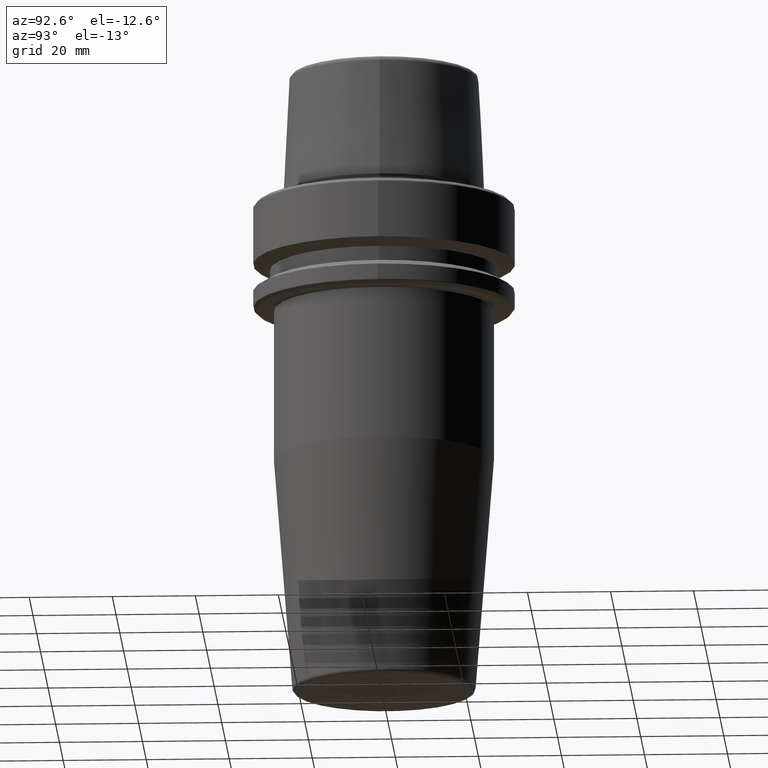
[diagram: clean part render]
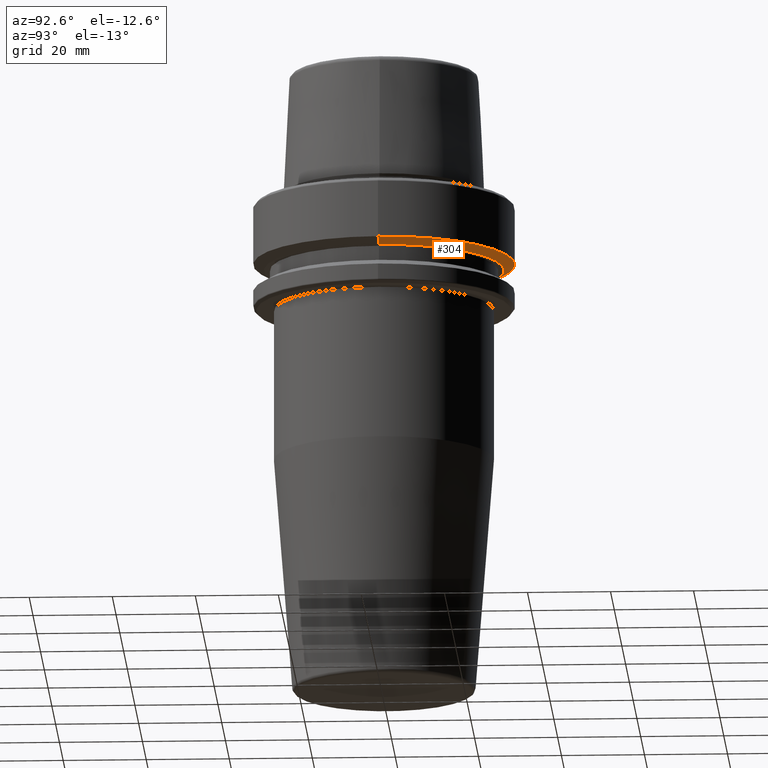
[diagram: same view with one face highlighted and labeled with its STEP entity id]
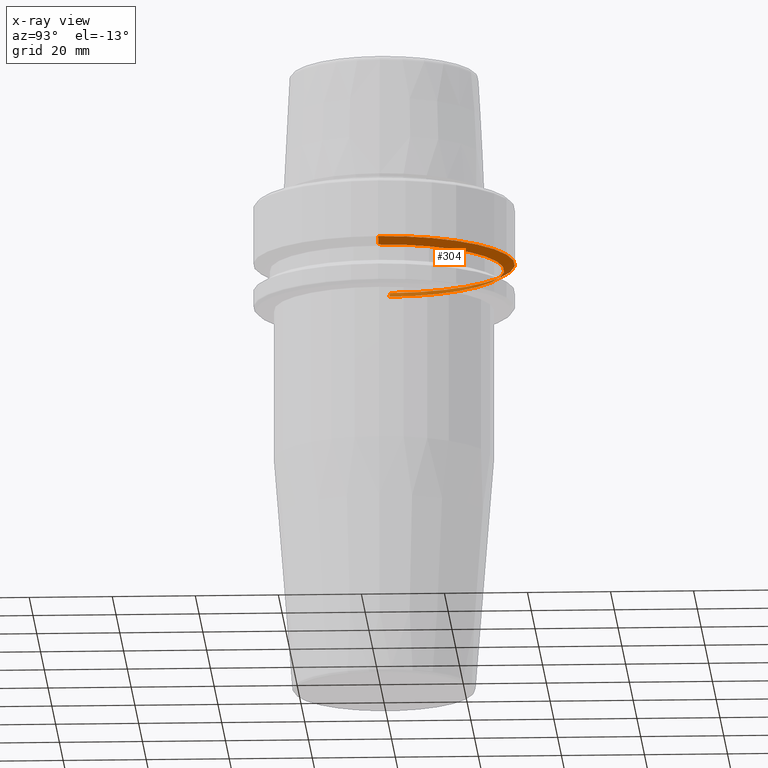
[diagram: x-ray of the same camera — body ghosted, the highlighted face saturated]
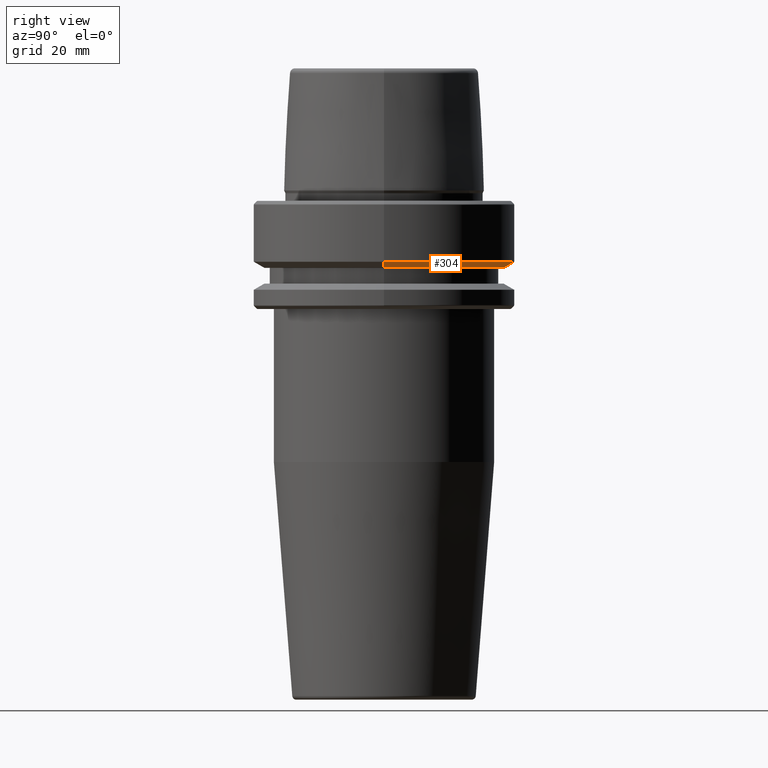
[diagram: same view with one face highlighted and labeled with its STEP entity id]
A machine part, auxiliary view. The second image highlights one B-rep face of the part: STEP entity #304.
The next image is the same camera in x-ray: the body ghosted, the highlighted face saturated — about 20% of this face is hidden behind the body in this view.
A second angle (right view) of the same face is appended — the face is thin or edge-on in the first view.
In plain terms, the highlighted conical surface has half-angle 60 deg.
Its self-contained STEP definition (entity closure, byte-faithful):
#25 = CARTESIAN_POINT ( 'NONE',  ( -28.94089653438085100, 3.544237630528423800E-015, -16.10000000000001600 ) ) ;
#89 = CARTESIAN_POINT ( 'NONE',  ( 28.94089653438085100, 0.0000000000000000000, -16.10000000000001600 ) ) ;
#102 = VECTOR ( 'NONE', #864, 1000.000000000000000 ) ;
#139 = CARTESIAN_POINT ( 'NONE',  ( 0.0000000000000000000, 0.0000000000000000000, -16.10000000000001600 ) ) ;
#140 = DIRECTION ( 'NONE',  ( 1.000000000000000000, 0.0000000000000000000, 0.0000000000000000000 ) ) ;
#159 = DIRECTION ( 'NONE',  ( 1.000000000000000000, 0.0000000000000000000, 0.0000000000000000000 ) ) ;
#203 = CONICAL_SURFACE ( 'NONE', #1068, 28.94089653438085100, 1.047197551196598300 ) ;
#247 = CARTESIAN_POINT ( 'NONE',  ( -28.94089653438085100, 3.700937523921292900E-015, -16.10000000000001600 ) ) ;
#274 = EDGE_CURVE ( 'NONE', #993, #713, #1003, .T. ) ;
#292 = CARTESIAN_POINT ( 'NONE',  ( 31.50000000000000000, 0.0000000000000000000, -14.62250092524070100 ) ) ;
#304 = ADVANCED_FACE ( 'NONE', ( #740 ), #203, .T. ) ;
#370 = DIRECTION ( 'NONE',  ( 1.000000000000000000, 0.0000000000000000000, 0.0000000000000000000 ) ) ;
#412 = CIRCLE ( 'NONE', #756, 31.50000000000000000 ) ;
#455 = EDGE_LOOP ( 'NONE', ( #891, #734, #1104, #1050 ) ) ;
#462 = CARTESIAN_POINT ( 'NONE',  ( 0.0000000000000000000, 0.0000000000000000000, -14.62250092524070100 ) ) ;
#463 = DIRECTION ( 'NONE',  ( -0.0000000000000000000, -0.0000000000000000000, 1.000000000000000000 ) ) ;
#509 = LINE ( 'NONE', #25, #102 ) ;
#592 = VECTOR ( 'NONE', #1253, 1000.000000000000000 ) ;
#598 = DIRECTION ( 'NONE',  ( -0.0000000000000000000, -0.0000000000000000000, 1.000000000000000000 ) ) ;
#641 = CARTESIAN_POINT ( 'NONE',  ( 28.94089653438085100, 0.0000000000000000000, -16.10000000000001600 ) ) ;
#660 = EDGE_CURVE ( 'NONE', #1259, #1025, #412, .T. ) ;
#713 = VERTEX_POINT ( 'NONE', #247 ) ;
#734 = ORIENTED_EDGE ( 'NONE', *, *, #1030, .T. ) ;
#740 = FACE_OUTER_BOUND ( 'NONE', #455, .T. ) ;
#756 = AXIS2_PLACEMENT_3D ( 'NONE', #462, #1021, #159 ) ;
#864 = DIRECTION ( 'NONE',  ( -0.8660254037844389300, 1.060575238724907300E-016, 0.4999999999999995000 ) ) ;
#879 = AXIS2_PLACEMENT_3D ( 'NONE', #1230, #463, #370 ) ;
#891 = ORIENTED_EDGE ( 'NONE', *, *, #274, .T. ) ;
#993 = VERTEX_POINT ( 'NONE', #89 ) ;
#1003 = CIRCLE ( 'NONE', #879, 28.94089653438085100 ) ;
#1021 = DIRECTION ( 'NONE',  ( -0.0000000000000000000, -0.0000000000000000000, 1.000000000000000000 ) ) ;
#1025 = VERTEX_POINT ( 'NONE', #1054 ) ;
#1030 = EDGE_CURVE ( 'NONE', #713, #1025, #509, .T. ) ;
#1044 = EDGE_CURVE ( 'NONE', #993, #1259, #1100, .T. ) ;
#1050 = ORIENTED_EDGE ( 'NONE', *, *, #1044, .F. ) ;
#1054 = CARTESIAN_POINT ( 'NONE',  ( -31.50000000000000000, 3.857637417314162700E-015, -14.62250092524070100 ) ) ;
#1068 = AXIS2_PLACEMENT_3D ( 'NONE', #139, #598, #140 ) ;
#1100 = LINE ( 'NONE', #641, #592 ) ;
#1104 = ORIENTED_EDGE ( 'NONE', *, *, #660, .F. ) ;
#1230 = CARTESIAN_POINT ( 'NONE',  ( 0.0000000000000000000, 0.0000000000000000000, -16.10000000000001600 ) ) ;
#1253 = DIRECTION ( 'NONE',  ( 0.8660254037844389300, 0.0000000000000000000, 0.4999999999999995000 ) ) ;
#1259 = VERTEX_POINT ( 'NONE', #292 ) ;